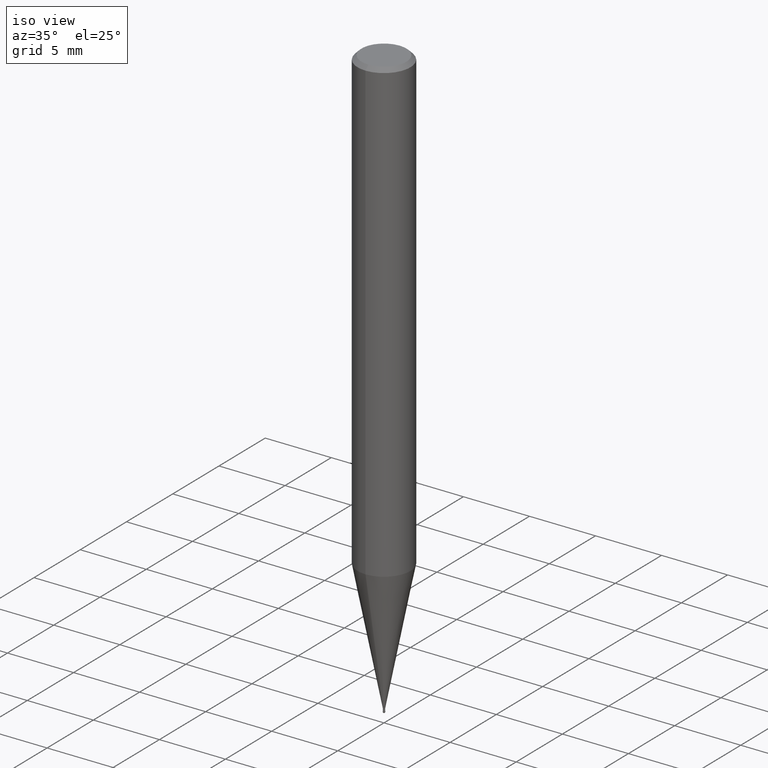
[diagram: clean part render]
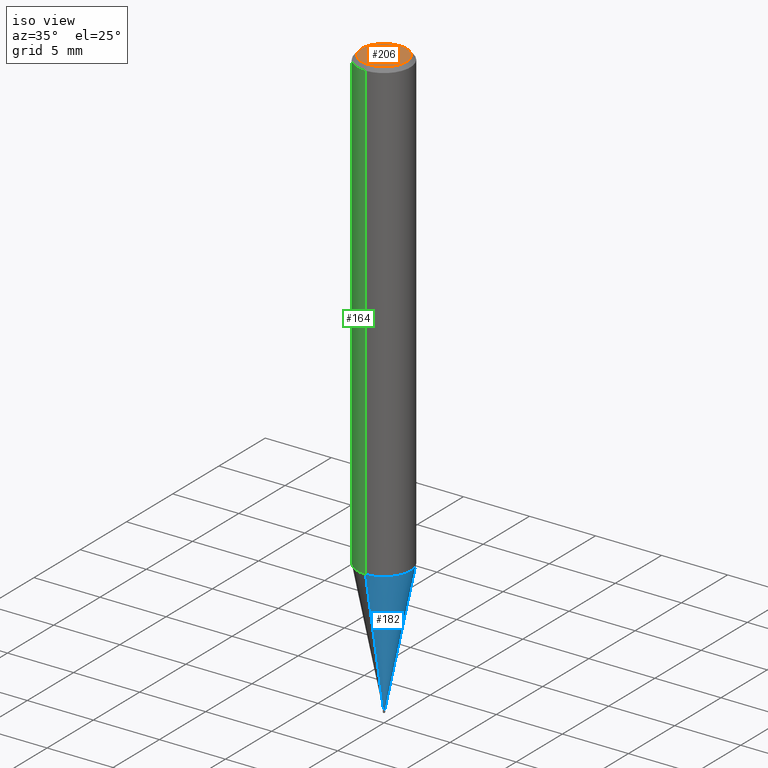
[diagram: same view with three faces highlighted in distinct colors, each labeled with its STEP entity id]
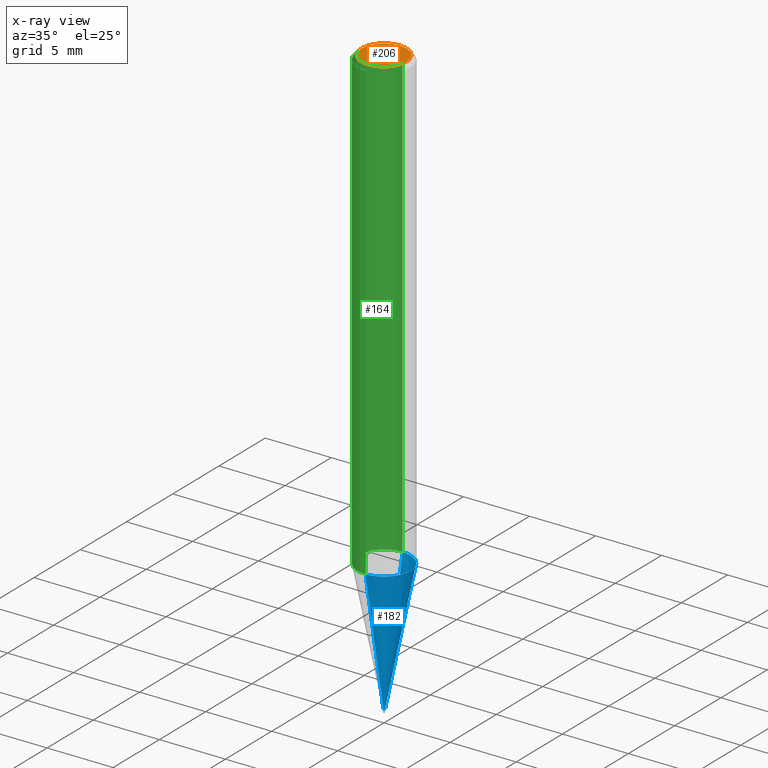
[diagram: x-ray of the same camera — body ghosted, the three highlighted faces saturated]
A machine part, iso view with three faces highlighted in distinct colors.
The next image is the same camera in x-ray (body ghosted, the three faces saturated) — at least one of them is partly hidden behind the body in this view.
Their STEP definitions:

[orange] entity #206 — the highlighted planar face has unit normal (-0, 0, 1).
#104=EDGE_CURVE('',#180,#108,#246,.T.);
#108=VERTEX_POINT('',#250);
#180=VERTEX_POINT('',#331);
#200=EDGE_CURVE('',#108,#180,#356,.T.);
#206=ADVANCED_FACE('',(#363),#364,.T.);
#246=CIRCLE('',#399,1.7);
#250=CARTESIAN_POINT('',(0.0,1.7,0.0));
#331=CARTESIAN_POINT('',(2.08183080149804E-016,-1.7,0.0));
#356=CIRCLE('',#535,1.7);
#363=FACE_OUTER_BOUND('',#544,.T.);
#364=PLANE('',#545);
#399=AXIS2_PLACEMENT_3D('',#571,#572,#573);
#535=AXIS2_PLACEMENT_3D('',#717,#718,#719);
#544=EDGE_LOOP('',(#728,#729));
#545=AXIS2_PLACEMENT_3D('',#730,#731,#732);
#571=CARTESIAN_POINT('',(0.0,0.0,0.0));
#572=DIRECTION('',(0.0,0.0,-1.0));
#573=DIRECTION('',(0.0,1.0,0.0));
#717=CARTESIAN_POINT('',(0.0,0.0,0.0));
#718=DIRECTION('',(0.0,0.0,-1.0));
#719=DIRECTION('',(0.0,1.0,0.0));
#728=ORIENTED_EDGE('',*,*,#200,.F.);
#729=ORIENTED_EDGE('',*,*,#104,.F.);
#730=CARTESIAN_POINT('',(0.0,0.85,0.0));
#731=DIRECTION('',(-0.0,0.0,1.0));
#732=DIRECTION('',(0.0,-1.0,0.0));

[blue] entity #182 — the highlighted conical surface has half-angle 11 deg.
#100=VERTEX_POINT('',#242);
#114=EDGE_CURVE('',#118,#134,#257,.T.);
#118=VERTEX_POINT('',#261);
#120=EDGE_CURVE('',#100,#166,#263,.T.);
#124=EDGE_CURVE('',#100,#134,#268,.T.);
#132=EDGE_CURVE('',#166,#118,#277,.T.);
#134=VERTEX_POINT('',#279);
#166=VERTEX_POINT('',#315);
#182=ADVANCED_FACE('',(#333),#334,.T.);
#242=CARTESIAN_POINT('',(0.0,1.99995,-34.758));
#257=LINE('',#414,#415);
#261=CARTESIAN_POINT('',(8.25996985653193E-018,-0.06745,-44.7));
#263=LINE('',#421,#422);
#268=CIRCLE('',#428,1.99995);
#277=CIRCLE('',#440,0.06745);
#279=CARTESIAN_POINT('',(2.44915147732706E-016,-1.99995,-34.758));
#315=CARTESIAN_POINT('',(0.0,0.06745,-44.7));
#333=FACE_OUTER_BOUND('',#505,.T.);
#334=CONICAL_SURFACE('',#506,1.0337,0.191983403757332);
#414=CARTESIAN_POINT('',(1.26587558794619E-016,-1.0337,-39.729));
#415=VECTOR('',#586,1.0);
#421=CARTESIAN_POINT('',(-1.26587558794619E-016,1.0337,-39.729));
#422=VECTOR('',#588,1.0);
#428=AXIS2_PLACEMENT_3D('',#597,#598,#599);
#440=AXIS2_PLACEMENT_3D('',#609,#610,#611);
#505=EDGE_LOOP('',(#670,#671,#672,#673));
#506=AXIS2_PLACEMENT_3D('',#674,#675,#676);
#586=DIRECTION('',(2.33662525420506E-017,-0.190806233114154,0.981627720373048));
#588=DIRECTION('',(2.33662525420506E-017,-0.190806233114154,-0.981627720373048));
#597=CARTESIAN_POINT('',(0.0,0.0,-34.758));
#598=DIRECTION('',(0.0,0.0,-1.0));
#599=DIRECTION('',(0.0,1.0,0.0));
#609=CARTESIAN_POINT('',(0.0,0.0,-44.7));
#610=DIRECTION('',(0.0,0.0,-1.0));
#611=DIRECTION('',(0.0,1.0,0.0));
#670=ORIENTED_EDGE('',*,*,#120,.F.);
#671=ORIENTED_EDGE('',*,*,#124,.T.);
#672=ORIENTED_EDGE('',*,*,#114,.F.);
#673=ORIENTED_EDGE('',*,*,#132,.F.);
#674=CARTESIAN_POINT('',(0.0,0.0,-39.729));
#675=DIRECTION('',(-0.0,-0.0,1.0));
#676=DIRECTION('',(0.0,1.0,0.0));

[green] entity #164 — the highlighted cylindrical surface (edge-blend (fillet) strip) has radius 2 mm, axis along (-0, -0, 1).
#110=EDGE_CURVE('',#156,#140,#252,.T.);
#128=VERTEX_POINT('',#272);
#140=VERTEX_POINT('',#285);
#144=EDGE_CURVE('',#210,#140,#289,.T.);
#156=VERTEX_POINT('',#302);
#164=ADVANCED_FACE('',(#312),#313,.T.);
#178=EDGE_CURVE('',#128,#156,#329,.T.);
#210=VERTEX_POINT('',#368);
#212=EDGE_CURVE('',#210,#128,#370,.T.);
#252=LINE('',#407,#408);
#272=CARTESIAN_POINT('',(2.44921270764475E-016,-2.0,-0.299999999999997));
#285=CARTESIAN_POINT('',(0.0,2.0,-34.758));
#289=CIRCLE('',#453,2.0);
#302=CARTESIAN_POINT('',(0.0,2.0,-0.299999999999997));
#312=FACE_OUTER_BOUND('',#483,.T.);
#313=CYLINDRICAL_SURFACE('',#484,2.0);
#329=CIRCLE('',#501,2.0);
#368=CARTESIAN_POINT('',(2.44921270764475E-016,-2.0,-34.758));
#370=LINE('',#553,#554);
#407=CARTESIAN_POINT('',(-2.44921270764475E-016,2.0,-17.529));
#408=VECTOR('',#577,1.0);
#453=AXIS2_PLACEMENT_3D('',#616,#617,#618);
#483=EDGE_LOOP('',(#645,#646,#647,#648));
#484=AXIS2_PLACEMENT_3D('',#649,#650,#651);
#501=AXIS2_PLACEMENT_3D('',#666,#667,#668);
#553=CARTESIAN_POINT('',(2.44921270764475E-016,-2.0,-17.529));
#554=VECTOR('',#736,1.0);
#577=DIRECTION('',(0.0,0.0,-1.0));
#616=CARTESIAN_POINT('',(0.0,0.0,-34.758));
#617=DIRECTION('',(0.0,0.0,-1.0));
#618=DIRECTION('',(0.0,1.0,0.0));
#645=ORIENTED_EDGE('',*,*,#110,.T.);
#646=ORIENTED_EDGE('',*,*,#144,.F.);
#647=ORIENTED_EDGE('',*,*,#212,.T.);
#648=ORIENTED_EDGE('',*,*,#178,.T.);
#649=CARTESIAN_POINT('',(0.0,0.0,-17.529));
#650=DIRECTION('',(-0.0,-0.0,1.0));
#651=DIRECTION('',(0.0,1.0,0.0));
#666=CARTESIAN_POINT('',(0.0,0.0,-0.299999999999997));
#667=DIRECTION('',(0.0,0.0,-1.0));
#668=DIRECTION('',(0.0,1.0,0.0));
#736=DIRECTION('',(-0.0,-0.0,1.0));